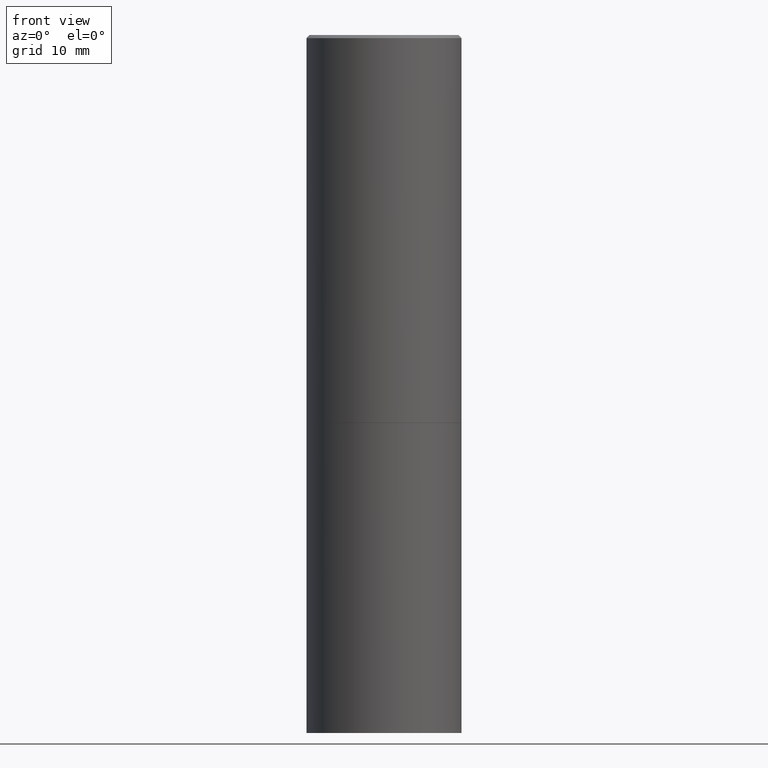
[diagram: clean part render]
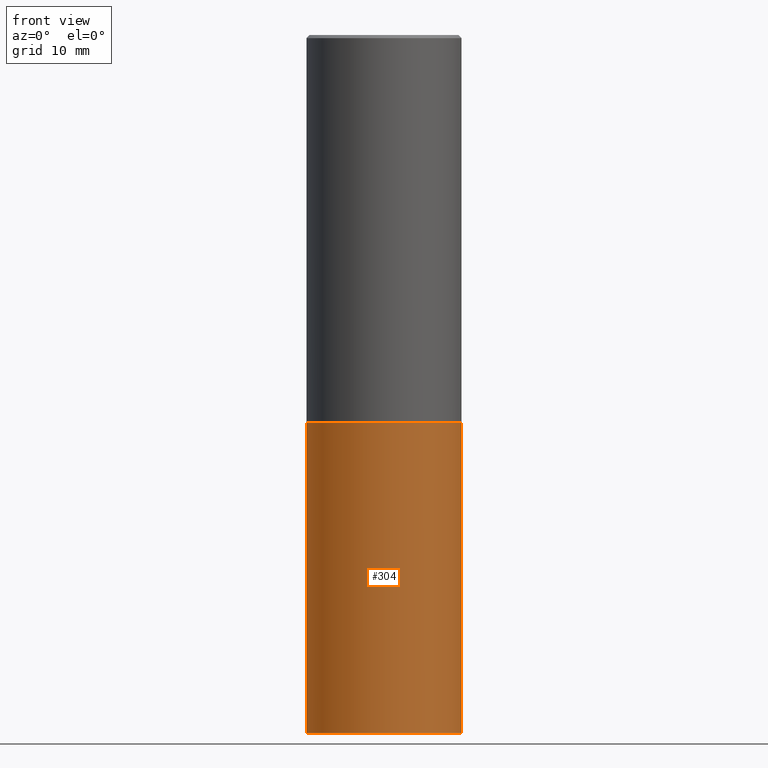
[diagram: same view with one face highlighted and labeled with its STEP entity id]
A machine part, front view. The second image highlights one B-rep face of the part: STEP entity #304.
In plain terms, the highlighted cylindrical surface (partial cylindrical patch) has radius 12.7 mm, axis along (-0, 0, 1).
Its self-contained STEP definition (entity closure, byte-faithful):
#11 = AXIS2_PLACEMENT_3D ( 'NONE', #174, #140, #363 ) ;
#18 = CARTESIAN_POINT ( 'NONE',  ( -0.5000000000000000000, -8.667471007150509990E-15, -4.500000000000000000 ) ) ;
#24 = ORIENTED_EDGE ( 'NONE', *, *, #71, .F. ) ;
#33 = EDGE_LOOP ( 'NONE', ( #24, #262, #280, #203 ) ) ;
#34 = CIRCLE ( 'NONE', #217, 0.5000000000000000000 ) ;
#48 = CIRCLE ( 'NONE', #87, 0.5000000000000000000 ) ;
#51 = LINE ( 'NONE', #252, #80 ) ;
#71 = EDGE_CURVE ( 'NONE', #148, #314, #165, .T. ) ;
#80 = VECTOR ( 'NONE', #170, 39.37007874015748143 ) ;
#87 = AXIS2_PLACEMENT_3D ( 'NONE', #291, #156, #265 ) ;
#105 = DIRECTION ( 'NONE',  ( -2.445468806185136597E-29, 3.491481338843145583E-15, 1.000000000000000000 ) ) ;
#111 = CARTESIAN_POINT ( 'NONE',  ( 0.5000000000000000000, -1.920314736363729025E-14, -4.500000000000000000 ) ) ;
#140 = DIRECTION ( 'NONE',  ( -2.445468806185136597E-29, 3.491481338843145583E-15, 1.000000000000000000 ) ) ;
#148 = VERTEX_POINT ( 'NONE', #18 ) ;
#155 = EDGE_CURVE ( 'NONE', #314, #172, #34, .T. ) ;
#156 = DIRECTION ( 'NONE',  ( -2.445468806185136597E-29, 3.491481338843145583E-15, 1.000000000000000000 ) ) ;
#165 = LINE ( 'NONE', #168, #305 ) ;
#168 = CARTESIAN_POINT ( 'NONE',  ( -0.5000000000000000000, 3.552713678800500929E-15, -2.459467545127452891E-29 ) ) ;
#170 = DIRECTION ( 'NONE',  ( -2.445468806185136877E-29, 3.491481338843145188E-15, 1.000000000000000000 ) ) ;
#172 = VERTEX_POINT ( 'NONE', #279 ) ;
#174 = CARTESIAN_POINT ( 'NONE',  ( 0.000000000000000000, 0.000000000000000000, 0.000000000000000000 ) ) ;
#203 = ORIENTED_EDGE ( 'NONE', *, *, #155, .F. ) ;
#217 = AXIS2_PLACEMENT_3D ( 'NONE', #356, #105, #222 ) ;
#222 = DIRECTION ( 'NONE',  ( 1.000000000000000000, -6.982962677686269077E-15, 0.000000000000000000 ) ) ;
#235 = EDGE_CURVE ( 'NONE', #148, #261, #48, .T. ) ;
#252 = CARTESIAN_POINT ( 'NONE',  ( 0.5000000000000000000, -3.491481338843133355E-15, 2.438088387897967896E-29 ) ) ;
#254 = CARTESIAN_POINT ( 'NONE',  ( -0.5000000000000000000, -8.667471007150509990E-15, -2.500000000000000000 ) ) ;
#261 = VERTEX_POINT ( 'NONE', #111 ) ;
#262 = ORIENTED_EDGE ( 'NONE', *, *, #235, .T. ) ;
#265 = DIRECTION ( 'NONE',  ( 1.000000000000000000, -6.982962677686266711E-15, 0.000000000000000000 ) ) ;
#271 = DIRECTION ( 'NONE',  ( -2.445468806185136877E-29, 3.491481338843145188E-15, 1.000000000000000000 ) ) ;
#275 = CYLINDRICAL_SURFACE ( 'NONE', #11, 0.5000000000000000000 ) ;
#279 = CARTESIAN_POINT ( 'NONE',  ( 0.5000000000000000000, -1.222018468595099830E-14, -2.500000000000000000 ) ) ;
#280 = ORIENTED_EDGE ( 'NONE', *, *, #286, .T. ) ;
#286 = EDGE_CURVE ( 'NONE', #261, #172, #51, .T. ) ;
#291 = CARTESIAN_POINT ( 'NONE',  ( 1.100460962783311469E-28, -1.571166602479415690E-14, -4.500000000000000000 ) ) ;
#303 = FACE_OUTER_BOUND ( 'NONE', #33, .T. ) ;
#304 = ADVANCED_FACE ( 'NONE', ( #303 ), #275, .T. ) ;
#305 = VECTOR ( 'NONE', #271, 39.37007874015748143 ) ;
#314 = VERTEX_POINT ( 'NONE', #254 ) ;
#356 = CARTESIAN_POINT ( 'NONE',  ( 6.113672015462842613E-29, -8.728703347107864943E-15, -2.500000000000000000 ) ) ;
#363 = DIRECTION ( 'NONE',  ( 1.000000000000000000, -6.982962677686266711E-15, 4.876176775795935793E-29 ) ) ;